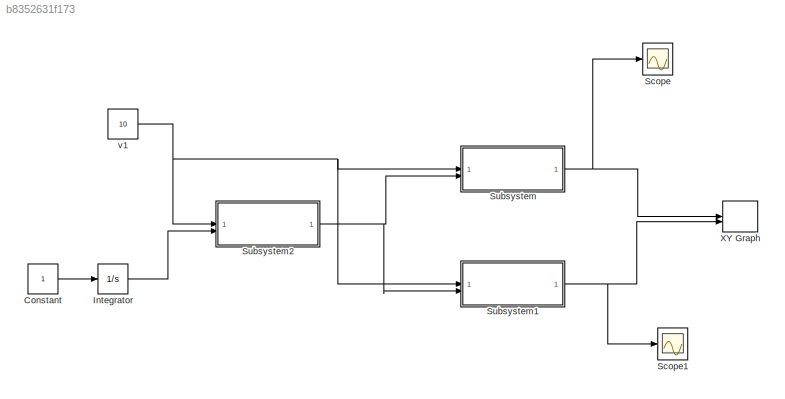
MODEL slx_b8352631f173
KIND model
CONFIG AbsTol = auto
CONFIG EnableMultiTasking = off
CONFIG FixedStep = 0.001
CONFIG MaxStep = auto
CONFIG MinStep = auto
CONFIG RelTol = 1e-3
CONFIG SampleTimeConstraint = Unconstrained
CONFIG SolverName = ode4
CONFIG StartTime = 0.0
CONFIG StopTime = 200
BLOCK [Constant] Constant
BLOCK [Integrator] Integrator
BLOCK [Scope] Scope
  Floating = off
  NumInputPorts = 1
  ScopeSpecificationString = Simulink.scopes.TimeScopeBlockCfg('CurrentConfiguration', extmgr.ConfigurationSet(extmgr.Configuration('Core','General UI',true),extmgr.Configuration('Core','Source UI',true),extmgr.Configuration('Sources','WiredSimulink',true),extmgr.Configuration('Visuals','Time Domain',true,'SerializedDisplays',{struct('MinYLimReal','-7.63797','MaxYLimReal','44.7306','YLabelReal','','MinYLimMag','0.00000','MaxY...<+1329ch>
BLOCK [Scope] Scope1
  Floating = off
  NumInputPorts = 1
  ScopeSpecificationString = Simulink.scopes.TimeScopeBlockCfg('CurrentConfiguration', extmgr.ConfigurationSet(extmgr.Configuration('Core','General UI',true),extmgr.Configuration('Core','Source UI',true),extmgr.Configuration('Sources','WiredSimulink',true,'DataLoggingVariableName','ScopeData1'),extmgr.Configuration('Visuals','Time Domain',true,'SerializedDisplays',{struct('MinYLimReal','-9.75572','MaxYLimReal','49.41344','YLa...<+1399ch>
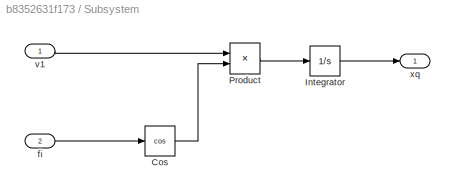
BLOCK [SubSystem] Subsystem
BLOCK [Trigonometry] Subsystem/Cos
  Operator = cos
BLOCK [Integrator] Subsystem/Integrator
BLOCK [Product] Subsystem/Product
BLOCK [Inport] Subsystem/fi
  Port = 2
BLOCK [Inport] Subsystem/v1
BLOCK [Outport] Subsystem/xq
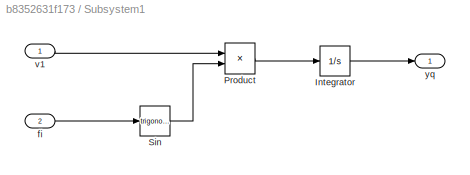
BLOCK [SubSystem] Subsystem1
BLOCK [Integrator] Subsystem1/Integrator
BLOCK [Product] Subsystem1/Product
BLOCK [Trigonometry] Subsystem1/Sin
BLOCK [Inport] Subsystem1/fi
  Port = 2
BLOCK [Inport] Subsystem1/v1
BLOCK [Outport] Subsystem1/yq
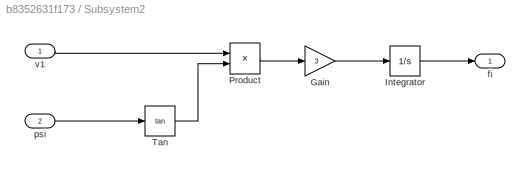
BLOCK [SubSystem] Subsystem2
BLOCK [Gain] Subsystem2/Gain
  Gain = 3
BLOCK [Integrator] Subsystem2/Integrator
BLOCK [Product] Subsystem2/Product
BLOCK [Trigonometry] Subsystem2/Tan
  Operator = tan
BLOCK [Outport] Subsystem2/fi
BLOCK [Inport] Subsystem2/psi
  Port = 2
BLOCK [Inport] Subsystem2/v1
BLOCK [Record] XY Graph
  CompatibilityTag = XY
  FileSettingsInternal = {"entries":[{"content":{"excelSettings":{"content":{},"type":"Streamout.ExcelSettings"}},"type":"Streamout.FileSettingStorage","uuid":""}],"packageUris":["http:\/\/schema.mathworks.com\/mf0\/streamout_blocks\/R2020a"],"version":"1.0"}
  Layout = [1 1]
  SignalsInternal = {"entries":[{"content":{"signals":[{"content":{"blockPath":[],"dimensions":[1],"domain":"","lineColor":"#fe330a","port":1,"sid":[""],"signalID":144,"signalName":"Subsystem"},"type":"RecordBlkView.Signal","uuid":""},{"content":{"blockPath":[],"dimensions":[1],"domain":"","lineColor":"#22b573","port":2,"sid":[""],"signalID":148,"signalName":"Subsystem1"},"type":"RecordBlkView.Signal","uuid":""}]},"t...<+141ch>
  VisualizationBindings = {"xyplotplugin":{"info":[{"series":[],"subplotID":1}]}}
BLOCK [Constant] v1
  Value = 10
LINE Constant:1 -> Integrator:1
LINE Integrator:1 -> Subsystem2:2
LINE Subsystem/Cos:1 -> Subsystem/Product:2
LINE Subsystem/Integrator:1 -> Subsystem/xq:1
LINE Subsystem/Product:1 -> Subsystem/Integrator:1
LINE Subsystem/fi:1 -> Subsystem/Cos:1
LINE Subsystem/v1:1 -> Subsystem/Product:1
LINE Subsystem1/Integrator:1 -> Subsystem1/yq:1
LINE Subsystem1/Product:1 -> Subsystem1/Integrator:1
LINE Subsystem1/Sin:1 -> Subsystem1/Product:2
LINE Subsystem1/fi:1 -> Subsystem1/Sin:1
LINE Subsystem1/v1:1 -> Subsystem1/Product:1
NET Subsystem1:1 -> Scope1:1, XY Graph:2
LINE Subsystem2/Gain:1 -> Subsystem2/Integrator:1
LINE Subsystem2/Integrator:1 -> Subsystem2/fi:1
LINE Subsystem2/Product:1 -> Subsystem2/Gain:1
LINE Subsystem2/Tan:1 -> Subsystem2/Product:2
LINE Subsystem2/psi:1 -> Subsystem2/Tan:1
LINE Subsystem2/v1:1 -> Subsystem2/Product:1
NET Subsystem2:1 -> Subsystem1:2, Subsystem:2
NET Subsystem:1 -> Scope:1, XY Graph:1
NET v1:1 -> Subsystem1:1, Subsystem2:1, Subsystem:1
note: NET lines group one-source signal fan-out (src -> all destinations, sorted); 1:1 wires keep LINE
